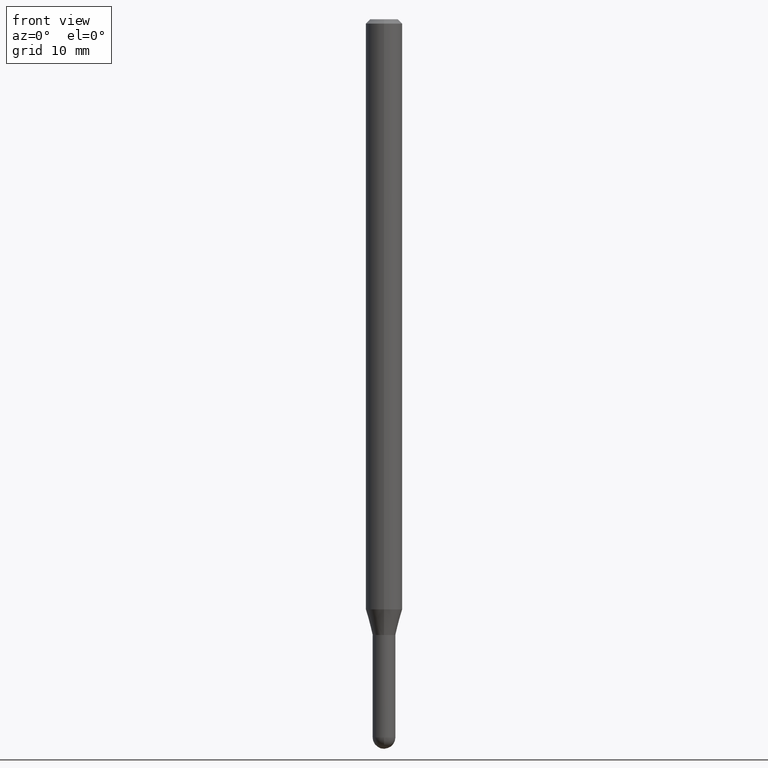
[diagram: clean part render]
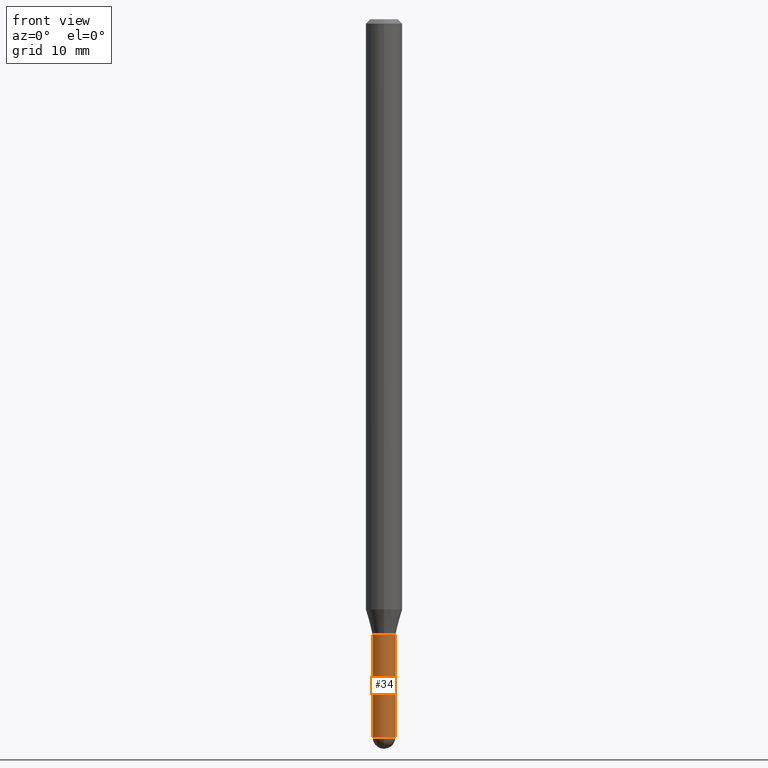
[diagram: same view with one face highlighted and labeled with its STEP entity id]
A machine part, front view. The second image highlights one B-rep face of the part: STEP entity #34.
In plain terms, the highlighted cylindrical surface (edge-blend (fillet) strip) has radius 0.9906 mm, axis along (-0, 0, 1).
Its self-contained STEP definition (entity closure, byte-faithful):
#7 = CARTESIAN_POINT ( 'NONE',  ( 0.03899999999999999994, -7.639361169388800962E-15, -2.110000000000000320 ) ) ;
#12 = VERTEX_POINT ( 'NONE', #7 ) ;
#27 = VERTEX_POINT ( 'NONE', #378 ) ;
#32 = CIRCLE ( 'NONE', #327, 0.03899999999999999994 ) ;
#34 = ADVANCED_FACE ( 'NONE', ( #335 ), #503, .T. ) ;
#42 = EDGE_CURVE ( 'NONE', #420, #12, #501, .T. ) ;
#47 = AXIS2_PLACEMENT_3D ( 'NONE', #257, #389, #274 ) ;
#59 = DIRECTION ( 'NONE',  ( 1.000000000000000000, -6.982962677686258033E-15, 0.000000000000000000 ) ) ;
#73 = ORIENTED_EDGE ( 'NONE', *, *, #374, .F. ) ;
#76 = CARTESIAN_POINT ( 'NONE',  ( -0.03899999999999999994, -7.702668932979569039E-15, -2.110000000000000320 ) ) ;
#93 = AXIS2_PLACEMENT_3D ( 'NONE', #122, #191, #193 ) ;
#101 = DIRECTION ( 'NONE',  ( 1.000000000000000000, -6.982962677686283277E-15, 0.000000000000000000 ) ) ;
#104 = VERTEX_POINT ( 'NONE', #76 ) ;
#122 = CARTESIAN_POINT ( 'NONE',  ( 0.000000000000000000, 0.000000000000000000, 0.000000000000000000 ) ) ;
#126 = EDGE_CURVE ( 'NONE', #104, #12, #230, .T. ) ;
#131 = CARTESIAN_POINT ( 'NONE',  ( -0.03899999999999999994, -7.702668932979569039E-15, -2.460999999999999854 ) ) ;
#137 = DIRECTION ( 'NONE',  ( -2.445468806185136597E-29, 3.491481338843145583E-15, 1.000000000000000000 ) ) ;
#159 = VERTEX_POINT ( 'NONE', #131 ) ;
#191 = DIRECTION ( 'NONE',  ( -2.445468806185136597E-29, 3.491481338843145583E-15, 1.000000000000000000 ) ) ;
#193 = DIRECTION ( 'NONE',  ( 1.000000000000000000, -6.982962677686265922E-15, 4.876176775795935793E-29 ) ) ;
#201 = CARTESIAN_POINT ( 'NONE',  ( 0.03899999999999999994, -2.723355444297643682E-16, 1.901708942560414931E-30 ) ) ;
#230 = CIRCLE ( 'NONE', #395, 0.03899999999999999994 ) ;
#236 = LINE ( 'NONE', #309, #254 ) ;
#254 = VECTOR ( 'NONE', #424, 39.37007874015748143 ) ;
#256 = EDGE_CURVE ( 'NONE', #159, #27, #32, .T. ) ;
#257 = CARTESIAN_POINT ( 'NONE',  ( 6.018298732021620914E-29, -8.592535574892981353E-15, -2.460999999999999854 ) ) ;
#267 = EDGE_CURVE ( 'NONE', #27, #420, #281, .T. ) ;
#274 = DIRECTION ( 'NONE',  ( 1.000000000000000000, -6.982962677686283277E-15, 0.000000000000000000 ) ) ;
#279 = EDGE_LOOP ( 'NONE', ( #73, #348, #297, #351, #459 ) ) ;
#281 = CIRCLE ( 'NONE', #47, 0.03899999999999999994 ) ;
#297 = ORIENTED_EDGE ( 'NONE', *, *, #267, .T. ) ;
#309 = CARTESIAN_POINT ( 'NONE',  ( -0.03899999999999999994, 2.771116669464390721E-16, -1.918384685199413078E-30 ) ) ;
#327 = AXIS2_PLACEMENT_3D ( 'NONE', #492, #137, #101 ) ;
#335 = FACE_OUTER_BOUND ( 'NONE', #279, .T. ) ;
#340 = DIRECTION ( 'NONE',  ( -2.445468806185136597E-29, 3.491481338843145583E-15, 1.000000000000000000 ) ) ;
#348 = ORIENTED_EDGE ( 'NONE', *, *, #256, .T. ) ;
#351 = ORIENTED_EDGE ( 'NONE', *, *, #42, .T. ) ;
#374 = EDGE_CURVE ( 'NONE', #159, #104, #236, .T. ) ;
#378 = CARTESIAN_POINT ( 'NONE',  ( -2.771116669463784777E-16, -0.03900000000000854172, -2.460999999999999854 ) ) ;
#389 = DIRECTION ( 'NONE',  ( -2.445468806185136597E-29, 3.491481338843145583E-15, 1.000000000000000000 ) ) ;
#394 = CARTESIAN_POINT ( 'NONE',  ( 0.03899999999999999994, -8.252116144355773169E-15, -2.460999999999999854 ) ) ;
#395 = AXIS2_PLACEMENT_3D ( 'NONE', #416, #340, #59 ) ;
#416 = CARTESIAN_POINT ( 'NONE',  ( 5.159939181050639071E-29, -7.367025624959036939E-15, -2.110000000000000320 ) ) ;
#420 = VERTEX_POINT ( 'NONE', #394 ) ;
#424 = DIRECTION ( 'NONE',  ( -2.445468806185136877E-29, 3.491481338843145188E-15, 1.000000000000000000 ) ) ;
#459 = ORIENTED_EDGE ( 'NONE', *, *, #126, .F. ) ;
#462 = DIRECTION ( 'NONE',  ( -2.445468806185136877E-29, 3.491481338843145188E-15, 1.000000000000000000 ) ) ;
#481 = VECTOR ( 'NONE', #462, 39.37007874015748143 ) ;
#492 = CARTESIAN_POINT ( 'NONE',  ( 6.018298732021620914E-29, -8.592535574892981353E-15, -2.460999999999999854 ) ) ;
#501 = LINE ( 'NONE', #201, #481 ) ;
#503 = CYLINDRICAL_SURFACE ( 'NONE', #93, 0.03899999999999999994 ) ;